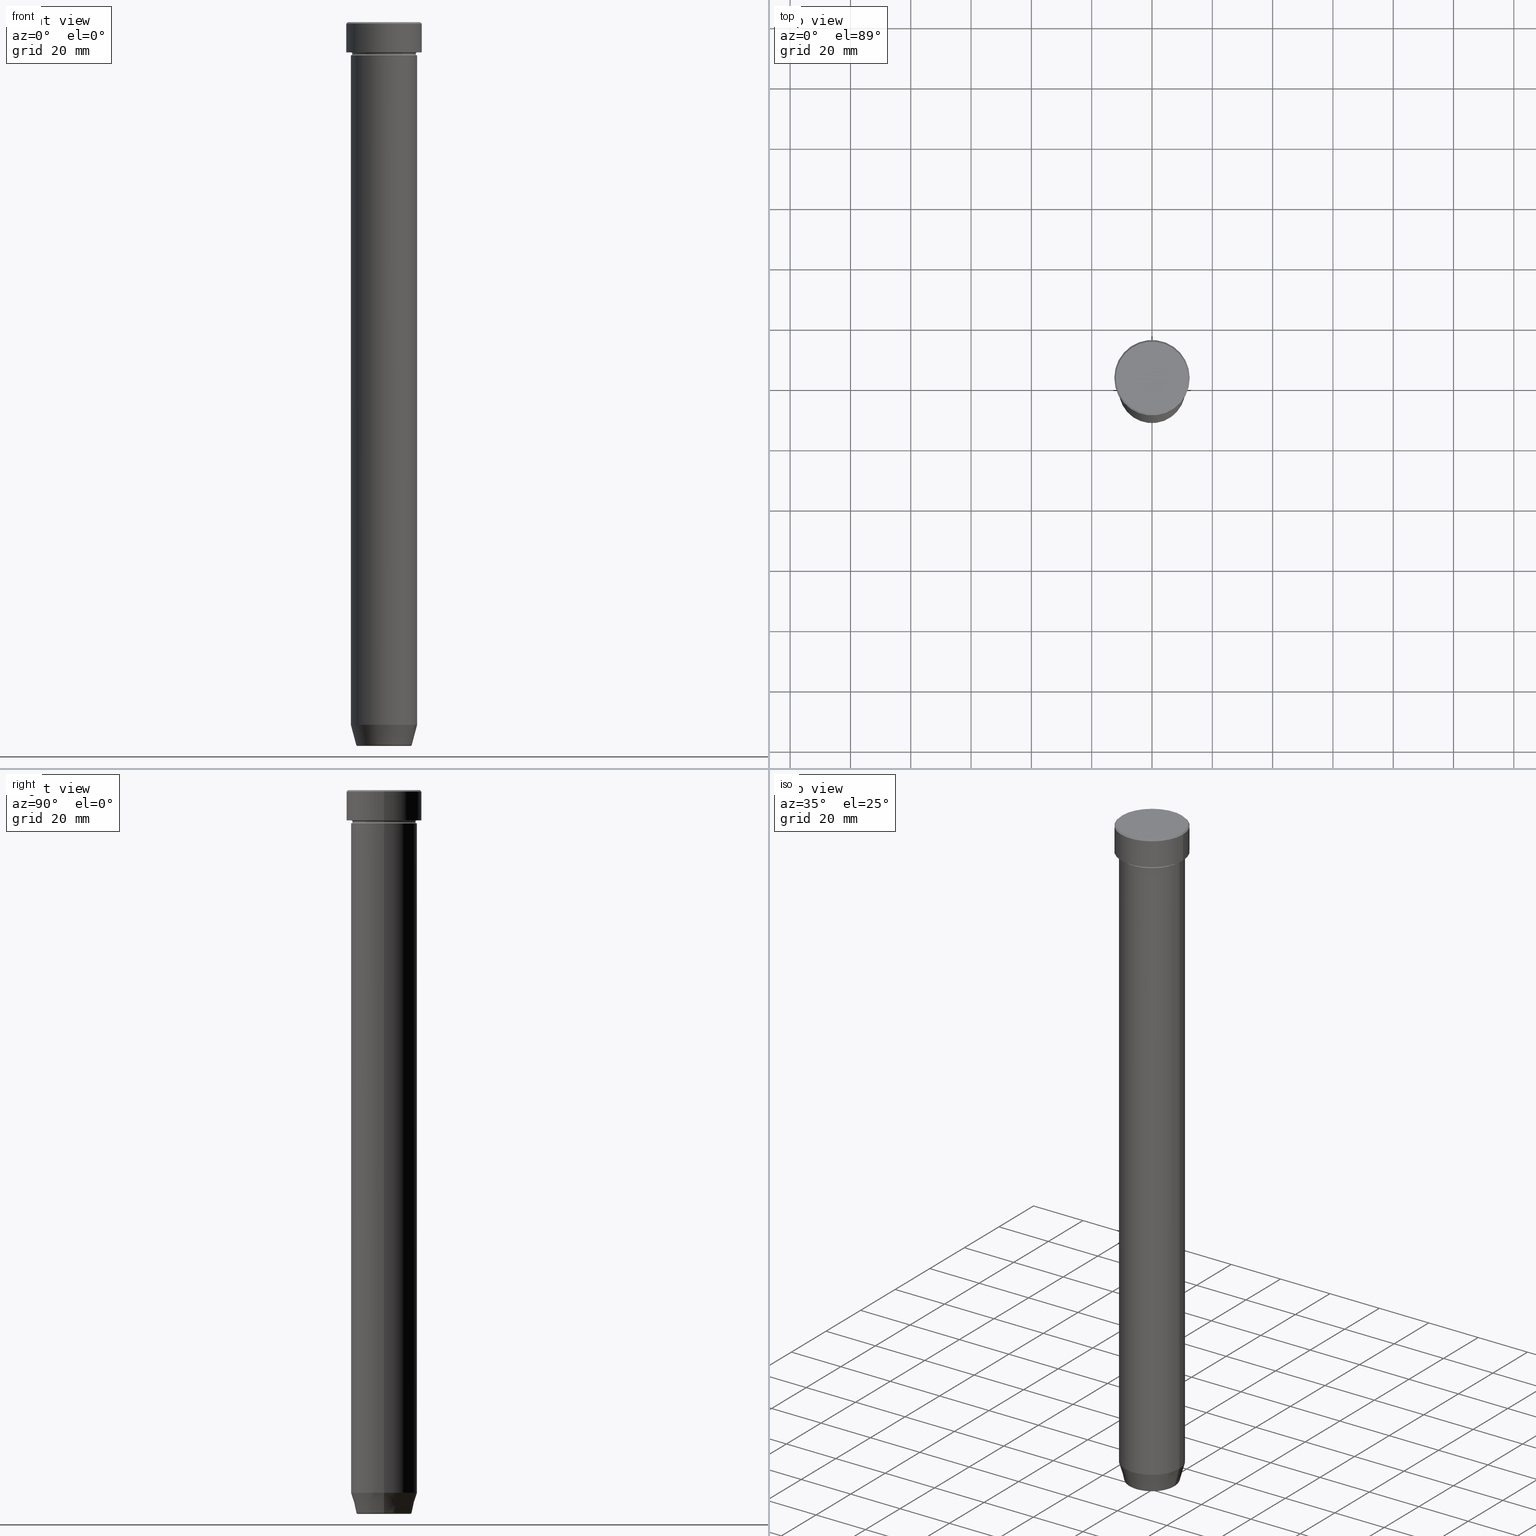
[diagram: canonical four-view strip — front | top / right | iso, engineering-drawing reading convention]
A machine part, canonical four-view strip (front | top / right | iso — engineering-drawing reading convention). The complete STEP part file that produces these views, byte-faithful:
ISO-10303-21;
HEADER;
FILE_DESCRIPTION (( 'STEP AP203' ),
    '1' );
FILE_NAME ('e283.STEP',
    '2024-01-02T19:22:17',
    ( '' ),
    ( '' ),
    'SwSTEP 2.0',
    'SolidWorks 2019',
    '' );
FILE_SCHEMA (( 'CONFIG_CONTROL_DESIGN' ));
ENDSEC;

DATA;
#1 = CIRCLE ( 'NONE', #549, 8.740692158992649397 ) ;
#2 = DIRECTION ( 'NONE',  ( -1.000000000000000000, 0.000000000000000000, -0.000000000000000000 ) ) ;
#3 = AXIS2_PLACEMENT_3D ( 'NONE', #51, #108, #470 ) ;
#4 = EDGE_CURVE ( 'NONE', #455, #572, #414, .T. ) ;
#5 = APPROVAL_ROLE ( '' ) ;
#6 = DIRECTION ( 'NONE',  ( -0.000000000000000000, -0.000000000000000000, 1.000000000000000000 ) ) ;
#7 = CARTESIAN_POINT ( 'NONE',  ( 0.000000000000000000, 0.000000000000000000, -240.0000000000000000 ) ) ;
#8 = EDGE_CURVE ( 'NONE', #37, #31, #336, .T. ) ;
#9 = ORIENTED_EDGE ( 'NONE', *, *, #597, .T. ) ;
#10 = PERSON_AND_ORGANIZATION_ROLE ( 'creator' ) ;
#11 = CARTESIAN_POINT ( 'NONE',  ( -11.00000000000000000, 1.347111479062088405E-15, 0.000000000000000000 ) ) ;
#12 = CYLINDRICAL_SURFACE ( 'NONE', #118, 12.50000000000000000 ) ;
#13 = VERTEX_POINT ( 'NONE', #556 ) ;
#14 = ORIENTED_EDGE ( 'NONE', *, *, #134, .T. ) ;
#15 = DATE_AND_TIME ( #144, #189 ) ;
#16 = CARTESIAN_POINT ( 'NONE',  ( 0.000000000000000000, 0.000000000000000000, -10.00000000000000000 ) ) ;
#17 = CC_DESIGN_PERSON_AND_ORGANIZATION_ASSIGNMENT ( #553, #10, ( #266 ) ) ;
#18 = DIRECTION ( 'NONE',  ( 1.000000000000000000, 0.000000000000000000, 0.000000000000000000 ) ) ;
#19 = TOROIDAL_SURFACE ( 'NONE', #591, 11.00000000000000000, 0.5000000000000000000 ) ;
#20 = CARTESIAN_POINT ( 'NONE',  ( 0.000000000000000000, 0.000000000000000000, -239.6294095225512422 ) ) ;
#21 = APPROVAL_STATUS ( 'not_yet_approved' ) ;
#22 = DIRECTION ( 'NONE',  ( 1.000000000000000000, 0.000000000000000000, 0.000000000000000000 ) ) ;
#23 = EDGE_LOOP ( 'NONE', ( #304, #238, #165, #451 ) ) ;
#24 = DIRECTION ( 'NONE',  ( 1.000000000000000000, 0.000000000000000000, 0.000000000000000000 ) ) ;
#25 = LINE ( 'NONE', #155, #29 ) ;
#26 = APPLICATION_CONTEXT ( 'configuration controlled 3d designs of mechanical parts and assemblies' ) ;
#27 = CARTESIAN_POINT ( 'NONE',  ( 0.000000000000000000, 0.000000000000000000, -11.00000000000000000 ) ) ;
#28 = FACE_OUTER_BOUND ( 'NONE', #347, .T. ) ;
#29 = VECTOR ( 'NONE', #518, 1000.000000000000000 ) ;
#30 = ADVANCED_FACE ( 'NONE', ( #408 ), #576, .T. ) ;
#31 = VERTEX_POINT ( 'NONE', #188 ) ;
#32 = PLANE ( 'NONE',  #442 ) ;
#33 = CARTESIAN_POINT ( 'NONE',  ( 0.000000000000000000, 0.000000000000000000, -0.4999999999999988343 ) ) ;
#34 = CARTESIAN_POINT ( 'NONE',  ( 11.00000000000000000, 1.347111479062088405E-15, -10.50000000000000000 ) ) ;
#35 = ADVANCED_FACE ( 'NONE', ( #555 ), #54, .T. ) ;
#36 = DIRECTION ( 'NONE',  ( 1.000000000000000000, 0.000000000000000000, 0.000000000000000000 ) ) ;
#37 = VERTEX_POINT ( 'NONE', #325 ) ;
#38 = LINE ( 'NONE', #81, #128 ) ;
#39 = AXIS2_PLACEMENT_3D ( 'NONE', #7, #326, #596 ) ;
#40 = APPROVAL_PERSON_ORGANIZATION ( #228, #127, #375 ) ;
#41 = ADVANCED_FACE ( 'NONE', ( #507 ), #199, .T. ) ;
#42 = DIRECTION ( 'NONE',  ( -0.000000000000000000, -0.000000000000000000, 1.000000000000000000 ) ) ;
#43 = PRODUCT_DEFINITION_SHAPE ( 'NONE', 'NONE',  #266 ) ;
#44 = DIRECTION ( 'NONE',  ( 0.000000000000000000, 0.000000000000000000, -1.000000000000000000 ) ) ;
#45 = ORIENTED_EDGE ( 'NONE', *, *, #391, .T. ) ;
#46 = AXIS2_PLACEMENT_3D ( 'NONE', #296, #444, #583 ) ;
#47 = VECTOR ( 'NONE', #394, 1000.000000000000000 ) ;
#48 = ORIENTED_EDGE ( 'NONE', *, *, #88, .T. ) ;
#49 = DIRECTION ( 'NONE',  ( -1.000000000000000000, 0.000000000000000000, 0.000000000000000000 ) ) ;
#50 = APPROVAL_DATE_TIME ( #468, #314 ) ;
#51 = CARTESIAN_POINT ( 'NONE',  ( -11.00000000000000000, 0.000000000000000000, -10.50000000000000000 ) ) ;
#52 = CALENDAR_DATE ( 2024, 2, 1 ) ;
#53 = CARTESIAN_POINT ( 'NONE',  ( -8.740692158992649397, 1.070426067484271730E-15, -239.5000000000000000 ) ) ;
#54 = CONICAL_SURFACE ( 'NONE', #585, 9.124355652982126585, 0.2617993877991509621 ) ;
#55 = DIRECTION ( 'NONE',  ( 1.000000000000000000, 0.000000000000000000, 0.000000000000000000 ) ) ;
#56 = TOROIDAL_SURFACE ( 'NONE', #396, 11.00000000000000000, 0.5000000000000000000 ) ;
#57 = AXIS2_PLACEMENT_3D ( 'NONE', #579, #166, #447 ) ;
#58 = ORIENTED_EDGE ( 'NONE', *, *, #267, .T. ) ;
#59 = CALENDAR_DATE ( 2024, 2, 1 ) ;
#60 = CYLINDRICAL_SURFACE ( 'NONE', #415, 11.00000000000000000 ) ;
#61 = DIRECTION ( 'NONE',  ( -0.000000000000000000, -0.000000000000000000, 1.000000000000000000 ) ) ;
#62 = SHAPE_DEFINITION_REPRESENTATION ( #43, #310 ) ;
#63 = VERTEX_POINT ( 'NONE', #102 ) ;
#64 = ORIENTED_EDGE ( 'NONE', *, *, #214, .T. ) ;
#65 = APPROVAL_ROLE ( '' ) ;
#66 = CARTESIAN_POINT ( 'NONE',  ( 12.00000000000000355, 1.500192328955507734E-15, 0.000000000000000000 ) ) ;
#67 = EDGE_LOOP ( 'NONE', ( #513, #342, #440, #515 ) ) ;
#68 = VECTOR ( 'NONE', #6, 1000.000000000000000 ) ;
#69 = CIRCLE ( 'NONE', #337, 0.5000000000000004441 ) ;
#70 = ORGANIZATION ( 'NEUR�EN�', 'NEUR�EN�', '' ) ;
#71 = DIRECTION ( 'NONE',  ( -1.000000000000000000, 0.000000000000000000, 0.000000000000000000 ) ) ;
#72 = EDGE_CURVE ( 'NONE', #572, #541, #505, .T. ) ;
#73 = CYLINDRICAL_SURFACE ( 'NONE', #103, 11.00000000000000000 ) ;
#74 = CARTESIAN_POINT ( 'NONE',  ( 11.00000000000000000, 0.000000000000000000, -11.00000000000000000 ) ) ;
#75 = CARTESIAN_POINT ( 'NONE',  ( 11.00000000000000000, 0.000000000000000000, -27.00000000000000000 ) ) ;
#76 = DIRECTION ( 'NONE',  ( 1.000000000000000000, 0.000000000000000000, 0.000000000000000000 ) ) ;
#77 = EDGE_CURVE ( 'NONE', #380, #328, #377, .T. ) ;
#78 = CARTESIAN_POINT ( 'NONE',  ( 0.000000000000000000, 0.000000000000000000, -27.00000000000000000 ) ) ;
#79 = ORIENTED_EDGE ( 'NONE', *, *, #361, .T. ) ;
#80 = VECTOR ( 'NONE', #234, 1000.000000000000000 ) ;
#81 = CARTESIAN_POINT ( 'NONE',  ( -11.00000000000000000, 1.347111479062088405E-15, 0.000000000000000000 ) ) ;
#82 = LINE ( 'NONE', #439, #47 ) ;
#83 = CC_DESIGN_PERSON_AND_ORGANIZATION_ASSIGNMENT ( #192, #331, ( #359 ) ) ;
#84 = CARTESIAN_POINT ( 'NONE',  ( 0.000000000000000000, 0.000000000000000000, -240.0000000000000000 ) ) ;
#85 = CIRCLE ( 'NONE', #301, 11.00000000000000000 ) ;
#86 = CIRCLE ( 'NONE', #3, 0.5000000000000004441 ) ;
#87 = FACE_OUTER_BOUND ( 'NONE', #196, .T. ) ;
#88 = EDGE_CURVE ( 'NONE', #355, #374, #1, .T. ) ;
#89 = MANIFOLD_SOLID_BREP ( 'Zaoblit4', #599 ) ;
#90 = CARTESIAN_POINT ( 'NONE',  ( -11.00000000000000000, 0.000000000000000000, -10.00000000000000000 ) ) ;
#91 = EDGE_CURVE ( 'NONE', #302, #371, #477, .T. ) ;
#92 = CIRCLE ( 'NONE', #172, 0.5000000000000004441 ) ;
#93 = CC_DESIGN_APPROVAL ( #294, ( #359 ) ) ;
#94 = ORIENTED_EDGE ( 'NONE', *, *, #214, .F. ) ;
#95 = MECHANICAL_CONTEXT ( 'NONE', #143, 'mechanical' ) ;
#96 = ORIENTED_EDGE ( 'NONE', *, *, #554, .F. ) ;
#97 = COORDINATED_UNIVERSAL_TIME_OFFSET ( 1, 0, .AHEAD. ) ;
#98 = PLANE ( 'NONE',  #381 ) ;
#99 = CARTESIAN_POINT ( 'NONE',  ( 0.000000000000000000, 0.000000000000000000, -0.4999999999999988343 ) ) ;
#100 = COORDINATED_UNIVERSAL_TIME_OFFSET ( 1, 0, .AHEAD. ) ;
#101 = CARTESIAN_POINT ( 'NONE',  ( 0.000000000000000000, 0.000000000000000000, -10.49999999999999822 ) ) ;
#102 = CARTESIAN_POINT ( 'NONE',  ( -11.00000000000000000, 1.347111479062088405E-15, -232.9999999999999716 ) ) ;
#103 = AXIS2_PLACEMENT_3D ( 'NONE', #249, #575, #433 ) ;
#104 = DIRECTION ( 'NONE',  ( -0.2588190451025222383, 3.169619151431782814E-17, 0.9659258262890678681 ) ) ;
#105 = AXIS2_PLACEMENT_3D ( 'NONE', #27, #208, #346 ) ;
#106 = ORIENTED_EDGE ( 'NONE', *, *, #77, .T. ) ;
#107 = CALENDAR_DATE ( 2024, 2, 1 ) ;
#108 = DIRECTION ( 'NONE',  ( -0.000000000000000000, -1.000000000000000000, -0.000000000000000000 ) ) ;
#109 = VERTEX_POINT ( 'NONE', #74 ) ;
#110 = CARTESIAN_POINT ( 'NONE',  ( 0.000000000000000000, 12.50000000000000000, -10.00000000000000000 ) ) ;
#111 = DIRECTION ( 'NONE',  ( 1.000000000000000000, 0.000000000000000000, 0.000000000000000000 ) ) ;
#112 = EDGE_CURVE ( 'NONE', #248, #13, #463, .T. ) ;
#113 = ORIENTED_EDGE ( 'NONE', *, *, #548, .F. ) ;
#114 = CARTESIAN_POINT ( 'NONE',  ( -11.00000000000000000, 1.347111479062088405E-15, -11.00000000000000000 ) ) ;
#115 = DIRECTION ( 'NONE',  ( 0.000000000000000000, 0.000000000000000000, -1.000000000000000000 ) ) ;
#116 = EDGE_CURVE ( 'NONE', #31, #37, #522, .T. ) ;
#117 =( NAMED_UNIT ( * ) PLANE_ANGLE_UNIT ( ) SI_UNIT ( $, .RADIAN. ) );
#118 = AXIS2_PLACEMENT_3D ( 'NONE', #558, #146, #503 ) ;
#119 = LOCAL_TIME ( 20, 22, 17.00000000000000000, #504 ) ;
#120 = FACE_OUTER_BOUND ( 'NONE', #403, .T. ) ;
#121 = DIRECTION ( 'NONE',  ( -0.000000000000000000, -0.000000000000000000, 1.000000000000000000 ) ) ;
#122 = EDGE_LOOP ( 'NONE', ( #148, #156, #113, #419 ) ) ;
#123 = CARTESIAN_POINT ( 'NONE',  ( -11.00000000000000000, 1.347111479062088405E-15, -27.00000000000000000 ) ) ;
#124 = ORIENTED_EDGE ( 'NONE', *, *, #548, .T. ) ;
#125 = DIRECTION ( 'NONE',  ( 0.000000000000000000, 0.000000000000000000, -1.000000000000000000 ) ) ;
#126 = CIRCLE ( 'NONE', #131, 0.5000000000000004441 ) ;
#127 = APPROVAL ( #21, 'NEUR�EN�' ) ;
#128 = VECTOR ( 'NONE', #582, 1000.000000000000000 ) ;
#129 = DIRECTION ( 'NONE',  ( -0.000000000000000000, -0.000000000000000000, 1.000000000000000000 ) ) ;
#130 = EDGE_CURVE ( 'NONE', #455, #109, #25, .T. ) ;
#131 = AXIS2_PLACEMENT_3D ( 'NONE', #34, #300, #356 ) ;
#132 = CARTESIAN_POINT ( 'NONE',  ( 0.000000000000000000, 0.000000000000000000, 0.000000000000000000 ) ) ;
#133 = CC_DESIGN_PERSON_AND_ORGANIZATION_ASSIGNMENT ( #369, #202, ( #251 ) ) ;
#134 = EDGE_CURVE ( 'NONE', #572, #455, #406, .T. ) ;
#135 = EDGE_LOOP ( 'NONE', ( #263, #154, #230, #282 ) ) ;
#136 = EDGE_LOOP ( 'NONE', ( #448, #14, #171, #480 ) ) ;
#137 = AXIS2_PLACEMENT_3D ( 'NONE', #427, #121, #18 ) ;
#138 = DIRECTION ( 'NONE',  ( 1.000000000000000000, 0.000000000000000000, 0.000000000000000000 ) ) ;
#139 = CARTESIAN_POINT ( 'NONE',  ( -9.223655072137175281, 1.238341722557646018E-15, -239.6294095225512422 ) ) ;
#140 = ADVANCED_FACE ( 'NONE', ( #532 ), #577, .T. ) ;
#141 = ORIENTED_EDGE ( 'NONE', *, *, #361, .F. ) ;
#142 = PERSON_AND_ORGANIZATION_ROLE ( 'design_supplier' ) ;
#143 = APPLICATION_CONTEXT ( 'configuration controlled 3d designs of mechanical parts and assemblies' ) ;
#144 = CALENDAR_DATE ( 2024, 2, 1 ) ;
#145 = DIRECTION ( 'NONE',  ( 0.000000000000000000, 0.000000000000000000, -1.000000000000000000 ) ) ;
#146 = DIRECTION ( 'NONE',  ( -0.000000000000000000, -0.000000000000000000, 1.000000000000000000 ) ) ;
#147 = EDGE_CURVE ( 'NONE', #328, #446, #85, .T. ) ;
#148 = ORIENTED_EDGE ( 'NONE', *, *, #4, .T. ) ;
#149 = ORIENTED_EDGE ( 'NONE', *, *, #8, .T. ) ;
#150 = PERSON_AND_ORGANIZATION ( #452, #70 ) ;
#151 = CARTESIAN_POINT ( 'NONE',  ( 0.000000000000000000, 0.000000000000000000, 0.000000000000000000 ) ) ;
#152 = TOROIDAL_SURFACE ( 'NONE', #491, 11.00000000000000000, 0.5000000000000000000 ) ;
#153 = AXIS2_PLACEMENT_3D ( 'NONE', #420, #295, #305 ) ;
#154 = ORIENTED_EDGE ( 'NONE', *, *, #303, .T. ) ;
#155 = CARTESIAN_POINT ( 'NONE',  ( 11.00000000000000000, 0.000000000000000000, 0.000000000000000000 ) ) ;
#156 = ORIENTED_EDGE ( 'NONE', *, *, #72, .T. ) ;
#157 = DIRECTION ( 'NONE',  ( -0.000000000000000000, -0.000000000000000000, 1.000000000000000000 ) ) ;
#158 = CARTESIAN_POINT ( 'NONE',  ( 0.000000000000000000, 0.000000000000000000, -10.00000000000000000 ) ) ;
#159 = DIRECTION ( 'NONE',  ( 1.000000000000000000, 0.000000000000000000, 0.000000000000000000 ) ) ;
#160 = FACE_BOUND ( 'NONE', #508, .T. ) ;
#161 =( LENGTH_UNIT ( ) NAMED_UNIT ( * ) SI_UNIT ( .MILLI., .METRE. ) );
#162 = DIRECTION ( 'NONE',  ( -0.000000000000000000, -0.000000000000000000, 1.000000000000000000 ) ) ;
#163 = CIRCLE ( 'NONE', #586, 9.223655072137175281 ) ;
#164 =( GEOMETRIC_REPRESENTATION_CONTEXT ( 3 ) GLOBAL_UNCERTAINTY_ASSIGNED_CONTEXT ( ( #519 ) ) GLOBAL_UNIT_ASSIGNED_CONTEXT ( ( #161, #117, #257 ) ) REPRESENTATION_CONTEXT ( 'NONE', 'WORKASPACE' ) );
#165 = ORIENTED_EDGE ( 'NONE', *, *, #311, .F. ) ;
#166 = DIRECTION ( 'NONE',  ( -0.000000000000000000, -0.000000000000000000, 1.000000000000000000 ) ) ;
#167 = CARTESIAN_POINT ( 'NONE',  ( 0.000000000000000000, 0.000000000000000000, -27.00000000000000000 ) ) ;
#168 = ORIENTED_EDGE ( 'NONE', *, *, #193, .F. ) ;
#169 = LINE ( 'NONE', #351, #550 ) ;
#170 = CARTESIAN_POINT ( 'NONE',  ( 0.000000000000000000, 0.000000000000000000, -10.49999999999999822 ) ) ;
#171 = ORIENTED_EDGE ( 'NONE', *, *, #130, .T. ) ;
#172 = AXIS2_PLACEMENT_3D ( 'NONE', #53, #568, #461 ) ;
#173 = LOCAL_TIME ( 20, 22, 17.00000000000000000, #100 ) ;
#174 = ADVANCED_FACE ( 'NONE', ( #527 ), #495, .T. ) ;
#175 = ADVANCED_FACE ( 'NONE', ( #297 ), #344, .F. ) ;
#176 = CARTESIAN_POINT ( 'NONE',  ( 0.000000000000000000, 0.000000000000000000, -10.50000000000000000 ) ) ;
#177 = EDGE_CURVE ( 'NONE', #302, #31, #453, .T. ) ;
#178 = PLANE ( 'NONE',  #523 ) ;
#179 = CIRCLE ( 'NONE', #539, 11.00000000000000000 ) ;
#180 = AXIS2_PLACEMENT_3D ( 'NONE', #280, #186, #514 ) ;
#181 = LINE ( 'NONE', #333, #449 ) ;
#182 = EDGE_LOOP ( 'NONE', ( #584, #424, #45, #124 ) ) ;
#183 = CARTESIAN_POINT ( 'NONE',  ( 0.000000000000000000, 0.000000000000000000, 0.000000000000000000 ) ) ;
#184 = DIRECTION ( 'NONE',  ( -0.000000000000000000, -0.000000000000000000, 1.000000000000000000 ) ) ;
#185 = AXIS2_PLACEMENT_3D ( 'NONE', #33, #569, #209 ) ;
#186 = DIRECTION ( 'NONE',  ( 0.000000000000000000, 0.000000000000000000, 1.000000000000000000 ) ) ;
#187 = AXIS2_PLACEMENT_3D ( 'NONE', #101, #474, #198 ) ;
#188 = CARTESIAN_POINT ( 'NONE',  ( -12.50000000000000000, 1.530808498934191521E-15, -0.4999999999999988343 ) ) ;
#189 = LOCAL_TIME ( 20, 22, 17.00000000000000000, #275 ) ;
#190 = ORIENTED_EDGE ( 'NONE', *, *, #134, .F. ) ;
#191 = EDGE_LOOP ( 'NONE', ( #360, #547, #221, #313 ) ) ;
#192 = PERSON_AND_ORGANIZATION ( #452, #70 ) ;
#193 = EDGE_CURVE ( 'NONE', #374, #355, #316, .T. ) ;
#194 = APPROVAL_STATUS ( 'not_yet_approved' ) ;
#195 = DIRECTION ( 'NONE',  ( -0.000000000000000000, -0.000000000000000000, 1.000000000000000000 ) ) ;
#196 = EDGE_LOOP ( 'NONE', ( #141, #521, #466, #565 ) ) ;
#197 = ORIENTED_EDGE ( 'NONE', *, *, #498, .F. ) ;
#198 = DIRECTION ( 'NONE',  ( 1.000000000000000000, 0.000000000000000000, 0.000000000000000000 ) ) ;
#199 = TOROIDAL_SURFACE ( 'NONE', #395, 8.740692158992649397, 0.5000000000000000000 ) ;
#200 = VECTOR ( 'NONE', #338, 999.9999999999998863 ) ;
#201 = ORIENTED_EDGE ( 'NONE', *, *, #116, .F. ) ;
#202 = PERSON_AND_ORGANIZATION_ROLE ( 'design_owner' ) ;
#203 = CARTESIAN_POINT ( 'NONE',  ( 0.000000000000000000, 0.000000000000000000, -239.6294095225512422 ) ) ;
#204 = DIRECTION ( 'NONE',  ( -0.000000000000000000, -0.000000000000000000, 1.000000000000000000 ) ) ;
#205 = DIRECTION ( 'NONE',  ( 1.000000000000000000, 0.000000000000000000, 0.000000000000000000 ) ) ;
#206 = ADVANCED_FACE ( 'NONE', ( #592 ), #12, .T. ) ;
#207 = ORIENTED_EDGE ( 'NONE', *, *, #289, .T. ) ;
#208 = DIRECTION ( 'NONE',  ( -0.000000000000000000, -0.000000000000000000, 1.000000000000000000 ) ) ;
#209 = DIRECTION ( 'NONE',  ( 1.000000000000000000, 0.000000000000000000, 0.000000000000000000 ) ) ;
#210 = DIRECTION ( 'NONE',  ( 0.000000000000000000, -1.000000000000000000, 0.000000000000000000 ) ) ;
#211 = DIRECTION ( 'NONE',  ( -0.000000000000000000, -0.000000000000000000, 1.000000000000000000 ) ) ;
#212 = EDGE_LOOP ( 'NONE', ( #349, #9 ) ) ;
#213 = ORIENTED_EDGE ( 'NONE', *, *, #498, .T. ) ;
#214 = EDGE_CURVE ( 'NONE', #240, #63, #181, .T. ) ;
#215 = CARTESIAN_POINT ( 'NONE',  ( 12.50000000000000000, 0.000000000000000000, -10.00000000000000000 ) ) ;
#216 = CARTESIAN_POINT ( 'NONE',  ( -12.50000000000000000, 1.530808498934191521E-15, -10.00000000000000000 ) ) ;
#217 = FACE_OUTER_BOUND ( 'NONE', #135, .T. ) ;
#218 = ADVANCED_FACE ( 'NONE', ( #272 ), #510, .T. ) ;
#219 = VECTOR ( 'NONE', #366, 999.9999999999998863 ) ;
#220 = DIRECTION ( 'NONE',  ( -1.000000000000000000, 0.000000000000000000, 0.000000000000000000 ) ) ;
#221 = ORIENTED_EDGE ( 'NONE', *, *, #147, .F. ) ;
#222 = CARTESIAN_POINT ( 'NONE',  ( 0.000000000000000000, 0.000000000000000000, -27.00000000000000000 ) ) ;
#223 = ORIENTED_EDGE ( 'NONE', *, *, #318, .F. ) ;
#224 = CIRCLE ( 'NONE', #563, 11.00000000000000000 ) ;
#225 = DIRECTION ( 'NONE',  ( 0.000000000000000000, 0.000000000000000000, -1.000000000000000000 ) ) ;
#226 = DIRECTION ( 'NONE',  ( 0.000000000000000000, 0.000000000000000000, -1.000000000000000000 ) ) ;
#227 = DIRECTION ( 'NONE',  ( 1.000000000000000000, 0.000000000000000000, 0.000000000000000000 ) ) ;
#228 = PERSON_AND_ORGANIZATION ( #452, #70 ) ;
#229 = CARTESIAN_POINT ( 'NONE',  ( 0.000000000000000000, 0.000000000000000000, 0.000000000000000000 ) ) ;
#230 = ORIENTED_EDGE ( 'NONE', *, *, #534, .T. ) ;
#231 = CIRCLE ( 'NONE', #307, 12.50000000000000000 ) ;
#232 = DATE_AND_TIME ( #52, #511 ) ;
#233 = CIRCLE ( 'NONE', #105, 11.00000000000000000 ) ;
#234 = DIRECTION ( 'NONE',  ( -0.000000000000000000, -0.000000000000000000, 1.000000000000000000 ) ) ;
#235 = EDGE_LOOP ( 'NONE', ( #273, #48 ) ) ;
#236 = APPLICATION_PROTOCOL_DEFINITION ( 'international standard', 'config_control_design', 1994, #143 ) ;
#237 = CARTESIAN_POINT ( 'NONE',  ( 11.00000000000000000, 0.000000000000000000, 0.000000000000000000 ) ) ;
#238 = ORIENTED_EDGE ( 'NONE', *, *, #399, .T. ) ;
#239 = ADVANCED_FACE ( 'NONE', ( #409 ), #152, .F. ) ;
#240 = VERTEX_POINT ( 'NONE', #139 ) ;
#241 = DIRECTION ( 'NONE',  ( -0.000000000000000000, -0.000000000000000000, 1.000000000000000000 ) ) ;
#242 = ORIENTED_EDGE ( 'NONE', *, *, #147, .T. ) ;
#243 = CARTESIAN_POINT ( 'NONE',  ( 0.000000000000000000, 11.00000000000000000, -27.00000000000000000 ) ) ;
#244 = FACE_OUTER_BOUND ( 'NONE', #471, .T. ) ;
#245 = CIRCLE ( 'NONE', #46, 0.5000000000000004441 ) ;
#246 = CC_DESIGN_PERSON_AND_ORGANIZATION_ASSIGNMENT ( #567, #509, ( #478 ) ) ;
#247 = CONICAL_SURFACE ( 'NONE', #309, 9.124355652982126585, 0.2617993877991509621 ) ;
#248 = VERTEX_POINT ( 'NONE', #462 ) ;
#249 = CARTESIAN_POINT ( 'NONE',  ( 0.000000000000000000, 0.000000000000000000, 0.000000000000000000 ) ) ;
#250 = ORIENTED_EDGE ( 'NONE', *, *, #531, .T. ) ;
#251 = PRODUCT ( 'e283', 'e283', '', ( #95 ) ) ;
#252 = ORIENTED_EDGE ( 'NONE', *, *, #531, .F. ) ;
#253 = DIRECTION ( 'NONE',  ( -0.000000000000000000, -0.000000000000000000, 1.000000000000000000 ) ) ;
#254 = CARTESIAN_POINT ( 'NONE',  ( 9.124355652982126585, 0.000000000000000000, -240.0000000000000000 ) ) ;
#255 = AXIS2_PLACEMENT_3D ( 'NONE', #222, #546, #278 ) ;
#256 = CIRCLE ( 'NONE', #497, 11.00000000000000000 ) ;
#257 =( NAMED_UNIT ( * ) SI_UNIT ( $, .STERADIAN. ) SOLID_ANGLE_UNIT ( ) );
#258 = CARTESIAN_POINT ( 'NONE',  ( -12.00000000000000355, 0.000000000000000000, 0.000000000000000000 ) ) ;
#259 = DIRECTION ( 'NONE',  ( 1.000000000000000000, 0.000000000000000000, 0.000000000000000000 ) ) ;
#260 = DIRECTION ( 'NONE',  ( -0.000000000000000000, -0.000000000000000000, 1.000000000000000000 ) ) ;
#261 = DIRECTION ( 'NONE',  ( 1.000000000000000000, 0.000000000000000000, 0.000000000000000000 ) ) ;
#262 = EDGE_CURVE ( 'NONE', #13, #248, #270, .T. ) ;
#263 = ORIENTED_EDGE ( 'NONE', *, *, #112, .F. ) ;
#264 = FACE_OUTER_BOUND ( 'NONE', #485, .T. ) ;
#265 = DIRECTION ( 'NONE',  ( -0.000000000000000000, -0.000000000000000000, 1.000000000000000000 ) ) ;
#266 = PRODUCT_DEFINITION ( 'NEZN�M�', '', #359, #353 ) ;
#267 = EDGE_CURVE ( 'NONE', #422, #428, #231, .T. ) ;
#268 = CARTESIAN_POINT ( 'NONE',  ( -11.00000000000000000, 1.347111479062088405E-15, -27.00000000000000000 ) ) ;
#269 = ORIENTED_EDGE ( 'NONE', *, *, #267, .F. ) ;
#270 = CIRCLE ( 'NONE', #187, 10.49999999999999822 ) ;
#271 = LOCAL_TIME ( 20, 22, 17.00000000000000000, #598 ) ;
#272 = FACE_OUTER_BOUND ( 'NONE', #335, .T. ) ;
#273 = ORIENTED_EDGE ( 'NONE', *, *, #193, .T. ) ;
#274 = ADVANCED_FACE ( 'NONE', ( #286 ), #60, .T. ) ;
#275 = COORDINATED_UNIVERSAL_TIME_OFFSET ( 1, 0, .AHEAD. ) ;
#276 = CARTESIAN_POINT ( 'NONE',  ( 0.000000000000000000, 0.000000000000000000, -10.50000000000000000 ) ) ;
#277 = ADVANCED_FACE ( 'NONE', ( #244 ), #376, .T. ) ;
#278 = DIRECTION ( 'NONE',  ( 1.000000000000000000, 0.000000000000000000, 0.000000000000000000 ) ) ;
#279 = ORIENTED_EDGE ( 'NONE', *, *, #404, .T. ) ;
#280 = CARTESIAN_POINT ( 'NONE',  ( 0.000000000000000000, 0.000000000000000000, 0.000000000000000000 ) ) ;
#281 = DIRECTION ( 'NONE',  ( 1.000000000000000000, 0.000000000000000000, 0.000000000000000000 ) ) ;
#282 = ORIENTED_EDGE ( 'NONE', *, *, #391, .F. ) ;
#283 = CARTESIAN_POINT ( 'NONE',  ( 0.000000000000000000, 0.000000000000000000, -239.5000000000000000 ) ) ;
#284 = AXIS2_PLACEMENT_3D ( 'NONE', #243, #125, #529 ) ;
#285 = DATE_AND_TIME ( #59, #271 ) ;
#286 = FACE_OUTER_BOUND ( 'NONE', #122, .T. ) ;
#287 = AXIS2_PLACEMENT_3D ( 'NONE', #496, #210, #44 ) ;
#288 = ORIENTED_EDGE ( 'NONE', *, *, #431, .T. ) ;
#289 = EDGE_CURVE ( 'NONE', #240, #412, #163, .T. ) ;
#290 = ADVANCED_FACE ( 'NONE', ( #481 ), #73, .T. ) ;
#291 = CALENDAR_DATE ( 2024, 2, 1 ) ;
#292 = CARTESIAN_POINT ( 'NONE',  ( 0.000000000000000000, 2.326828918379971286E-14, -240.0000000000000000 ) ) ;
#293 = EDGE_LOOP ( 'NONE', ( #385, #79, #559, #417 ) ) ;
#294 = APPROVAL ( #194, 'NEUR�EN�' ) ;
#295 = DIRECTION ( 'NONE',  ( -0.000000000000000000, -0.000000000000000000, 1.000000000000000000 ) ) ;
#296 = CARTESIAN_POINT ( 'NONE',  ( -11.00000000000000000, 1.347111479062088405E-15, -10.49999999999999822 ) ) ;
#297 = FACE_OUTER_BOUND ( 'NONE', #484, .T. ) ;
#298 = CARTESIAN_POINT ( 'NONE',  ( 0.000000000000000000, 0.000000000000000000, -11.00000000000000000 ) ) ;
#299 = DIRECTION ( 'NONE',  ( -0.000000000000000000, -0.000000000000000000, 1.000000000000000000 ) ) ;
#300 = DIRECTION ( 'NONE',  ( -1.224646799147353207E-16, 1.000000000000000000, 0.000000000000000000 ) ) ;
#301 = AXIS2_PLACEMENT_3D ( 'NONE', #487, #162, #308 ) ;
#302 = VERTEX_POINT ( 'NONE', #258 ) ;
#303 = EDGE_CURVE ( 'NONE', #248, #541, #245, .T. ) ;
#304 = ORIENTED_EDGE ( 'NONE', *, *, #88, .F. ) ;
#305 = DIRECTION ( 'NONE',  ( 1.000000000000000000, 0.000000000000000000, 0.000000000000000000 ) ) ;
#306 = DIRECTION ( 'NONE',  ( -0.000000000000000000, -0.000000000000000000, 1.000000000000000000 ) ) ;
#307 = AXIS2_PLACEMENT_3D ( 'NONE', #16, #341, #383 ) ;
#308 = DIRECTION ( 'NONE',  ( 1.000000000000000000, 0.000000000000000000, 0.000000000000000000 ) ) ;
#309 = AXIS2_PLACEMENT_3D ( 'NONE', #84, #211, #533 ) ;
#310 = ADVANCED_BREP_SHAPE_REPRESENTATION ( 'e283', ( #493, #89, #180 ), #164 ) ;
#311 = EDGE_CURVE ( 'NONE', #412, #240, #364, .T. ) ;
#312 = CARTESIAN_POINT ( 'NONE',  ( 9.223655072137175281, 0.000000000000000000, -239.6294095225512422 ) ) ;
#313 = ORIENTED_EDGE ( 'NONE', *, *, #77, .F. ) ;
#314 = APPROVAL ( #512, 'NEUR�EN�' ) ;
#315 = AXIS2_PLACEMENT_3D ( 'NONE', #183, #551, #457 ) ;
#316 = CIRCLE ( 'NONE', #39, 8.740692158992649397 ) ;
#317 = DIRECTION ( 'NONE',  ( 1.000000000000000000, 0.000000000000000000, 0.000000000000000000 ) ) ;
#318 = EDGE_CURVE ( 'NONE', #380, #63, #256, .T. ) ;
#319 = FACE_OUTER_BOUND ( 'NONE', #212, .T. ) ;
#320 = CARTESIAN_POINT ( 'NONE',  ( -12.00000000000000355, 0.000000000000000000, 0.000000000000000000 ) ) ;
#321 = EDGE_CURVE ( 'NONE', #489, #339, #179, .T. ) ;
#322 = VECTOR ( 'NONE', #492, 1000.000000000000000 ) ;
#323 = CIRCLE ( 'NONE', #153, 12.00000000000000355 ) ;
#324 = ADVANCED_FACE ( 'NONE', ( #87 ), #56, .F. ) ;
#325 = CARTESIAN_POINT ( 'NONE',  ( 12.50000000000000000, 0.000000000000000000, -0.4999999999999988343 ) ) ;
#326 = DIRECTION ( 'NONE',  ( 0.000000000000000000, 0.000000000000000000, -1.000000000000000000 ) ) ;
#327 = CARTESIAN_POINT ( 'NONE',  ( 0.000000000000000000, 0.000000000000000000, 0.000000000000000000 ) ) ;
#328 = VERTEX_POINT ( 'NONE', #363 ) ;
#329 = ORIENTED_EDGE ( 'NONE', *, *, #362, .T. ) ;
#330 = ORIENTED_EDGE ( 'NONE', *, *, #554, .T. ) ;
#331 = PERSON_AND_ORGANIZATION_ROLE ( 'creator' ) ;
#332 = CARTESIAN_POINT ( 'NONE',  ( 0.000000000000000000, 0.000000000000000000, -239.5000000000000000 ) ) ;
#333 = CARTESIAN_POINT ( 'NONE',  ( -9.124355652982126585, 1.117411294470662018E-15, -240.0000000000000000 ) ) ;
#334 = FACE_OUTER_BOUND ( 'NONE', #528, .T. ) ;
#335 = EDGE_LOOP ( 'NONE', ( #379, #288, #201, #386 ) ) ;
#336 = CIRCLE ( 'NONE', #405, 12.50000000000000000 ) ;
#337 = AXIS2_PLACEMENT_3D ( 'NONE', #432, #390, #115 ) ;
#338 = DIRECTION ( 'NONE',  ( -0.7071067811865462405, 0.000000000000000000, -0.7071067811865489050 ) ) ;
#339 = VERTEX_POINT ( 'NONE', #494 ) ;
#340 = EDGE_CURVE ( 'NONE', #412, #380, #488, .T. ) ;
#341 = DIRECTION ( 'NONE',  ( -0.000000000000000000, -0.000000000000000000, 1.000000000000000000 ) ) ;
#342 = ORIENTED_EDGE ( 'NONE', *, *, #91, .F. ) ;
#343 = CYLINDRICAL_SURFACE ( 'NONE', #540, 12.50000000000000000 ) ;
#344 = PLANE ( 'NONE',  #454 ) ;
#345 = DIRECTION ( 'NONE',  ( -0.000000000000000000, -0.000000000000000000, 1.000000000000000000 ) ) ;
#346 = DIRECTION ( 'NONE',  ( 1.000000000000000000, 0.000000000000000000, 0.000000000000000000 ) ) ;
#347 = EDGE_LOOP ( 'NONE', ( #94, #207, #476, #460 ) ) ;
#348 = AXIS2_PLACEMENT_3D ( 'NONE', #389, #573, #482 ) ;
#349 = ORIENTED_EDGE ( 'NONE', *, *, #91, .T. ) ;
#350 = DIRECTION ( 'NONE',  ( 1.000000000000000000, 0.000000000000000000, 0.000000000000000000 ) ) ;
#351 = CARTESIAN_POINT ( 'NONE',  ( 12.50000000000000000, 0.000000000000000000, 0.000000000000000000 ) ) ;
#352 = CARTESIAN_POINT ( 'NONE',  ( -8.740692158992649397, 1.099999016768738470E-15, -240.0000000000000000 ) ) ;
#353 = DESIGN_CONTEXT ( 'detailed design', #26, 'design' ) ;
#354 = DIRECTION ( 'NONE',  ( -0.000000000000000000, -0.000000000000000000, 1.000000000000000000 ) ) ;
#355 = VERTEX_POINT ( 'NONE', #352 ) ;
#356 = DIRECTION ( 'NONE',  ( -1.000000000000000000, -1.224646799147353454E-16, 0.000000000000000000 ) ) ;
#357 = AXIS2_PLACEMENT_3D ( 'NONE', #151, #260, #159 ) ;
#358 = CARTESIAN_POINT ( 'NONE',  ( 0.000000000000000000, 0.000000000000000000, -232.9999999999999716 ) ) ;
#359 = PRODUCT_DEFINITION_FORMATION_WITH_SPECIFIED_SOURCE ( 'LIBOVOLN�', '', #251, .NOT_KNOWN. ) ;
#360 = ORIENTED_EDGE ( 'NONE', *, *, #318, .T. ) ;
#361 = EDGE_CURVE ( 'NONE', #13, #339, #126, .T. ) ;
#362 = EDGE_CURVE ( 'NONE', #63, #380, #224, .T. ) ;
#363 = CARTESIAN_POINT ( 'NONE',  ( 11.00000000000000000, 0.000000000000000000, -27.00000000000000000 ) ) ;
#364 = CIRCLE ( 'NONE', #441, 9.223655072137175281 ) ;
#365 = AXIS2_PLACEMENT_3D ( 'NONE', #443, #129, #76 ) ;
#366 = DIRECTION ( 'NONE',  ( 0.7071067811865462405, 8.659560562354918067E-17, -0.7071067811865489050 ) ) ;
#367 = AXIS2_PLACEMENT_3D ( 'NONE', #283, #354, #537 ) ;
#368 = CIRCLE ( 'NONE', #587, 11.00000000000000000 ) ;
#369 = PERSON_AND_ORGANIZATION ( #452, #70 ) ;
#370 = DIRECTION ( 'NONE',  ( -0.000000000000000000, -0.000000000000000000, 1.000000000000000000 ) ) ;
#371 = VERTEX_POINT ( 'NONE', #66 ) ;
#372 = PERSON_AND_ORGANIZATION ( #452, #70 ) ;
#373 = CARTESIAN_POINT ( 'NONE',  ( 0.000000000000000000, 0.000000000000000000, -240.0000000000000000 ) ) ;
#374 = VERTEX_POINT ( 'NONE', #437 ) ;
#375 = APPROVAL_ROLE ( '' ) ;
#376 = PLANE ( 'NONE',  #284 ) ;
#377 = LINE ( 'NONE', #237, #80 ) ;
#378 = ADVANCED_FACE ( 'NONE', ( #570 ), #19, .F. ) ;
#379 = ORIENTED_EDGE ( 'NONE', *, *, #597, .F. ) ;
#380 = VERTEX_POINT ( 'NONE', #526 ) ;
#381 = AXIS2_PLACEMENT_3D ( 'NONE', #110, #473, #561 ) ;
#382 = APPLICATION_PROTOCOL_DEFINITION ( 'international standard', 'config_control_design', 1994, #26 ) ;
#383 = DIRECTION ( 'NONE',  ( 1.000000000000000000, 0.000000000000000000, 0.000000000000000000 ) ) ;
#384 = AXIS2_PLACEMENT_3D ( 'NONE', #436, #253, #261 ) ;
#385 = ORIENTED_EDGE ( 'NONE', *, *, #112, .T. ) ;
#386 = ORIENTED_EDGE ( 'NONE', *, *, #177, .F. ) ;
#387 = ORIENTED_EDGE ( 'NONE', *, *, #524, .T. ) ;
#388 = PERSON_AND_ORGANIZATION ( #452, #70 ) ;
#389 = CARTESIAN_POINT ( 'NONE',  ( 0.000000000000000000, 0.000000000000000000, -10.49999999999999822 ) ) ;
#390 = DIRECTION ( 'NONE',  ( 0.000000000000000000, -1.000000000000000000, 0.000000000000000000 ) ) ;
#391 = EDGE_CURVE ( 'NONE', #13, #109, #69, .T. ) ;
#392 = DIRECTION ( 'NONE',  ( -0.000000000000000000, -0.000000000000000000, 1.000000000000000000 ) ) ;
#393 = ADVANCED_FACE ( 'NONE', ( #160, #120 ), #98, .T. ) ;
#394 = DIRECTION ( 'NONE',  ( -0.000000000000000000, -0.000000000000000000, 1.000000000000000000 ) ) ;
#395 = AXIS2_PLACEMENT_3D ( 'NONE', #332, #61, #55 ) ;
#396 = AXIS2_PLACEMENT_3D ( 'NONE', #176, #536, #588 ) ;
#397 = TOROIDAL_SURFACE ( 'NONE', #384, 11.00000000000000000, 0.5000000000000000000 ) ;
#398 = CARTESIAN_POINT ( 'NONE',  ( 0.000000000000000000, 0.000000000000000000, -232.9999999999999716 ) ) ;
#399 = EDGE_CURVE ( 'NONE', #355, #240, #92, .T. ) ;
#400 = CC_DESIGN_DATE_AND_TIME_ASSIGNMENT ( #285, #426, ( #266 ) ) ;
#401 = CIRCLE ( 'NONE', #564, 11.00000000000000000 ) ;
#402 = CC_DESIGN_APPROVAL ( #127, ( #266 ) ) ;
#403 = EDGE_LOOP ( 'NONE', ( #269, #96 ) ) ;
#404 = EDGE_CURVE ( 'NONE', #339, #489, #401, .T. ) ;
#405 = AXIS2_PLACEMENT_3D ( 'NONE', #99, #225, #227 ) ;
#406 = CIRCLE ( 'NONE', #544, 11.00000000000000000 ) ;
#407 = ADVANCED_FACE ( 'NONE', ( #264 ), #535, .T. ) ;
#408 = FACE_OUTER_BOUND ( 'NONE', #67, .T. ) ;
#409 = FACE_OUTER_BOUND ( 'NONE', #293, .T. ) ;
#410 = CC_DESIGN_PERSON_AND_ORGANIZATION_ASSIGNMENT ( #372, #142, ( #359 ) ) ;
#411 = DIRECTION ( 'NONE',  ( 0.000000000000000000, 0.000000000000000000, -1.000000000000000000 ) ) ;
#412 = VERTEX_POINT ( 'NONE', #312 ) ;
#413 = ADVANCED_FACE ( 'NONE', ( #28 ), #247, .T. ) ;
#414 = CIRCLE ( 'NONE', #255, 11.00000000000000000 ) ;
#415 = AXIS2_PLACEMENT_3D ( 'NONE', #423, #195, #111 ) ;
#416 = APPROVAL_PERSON_ORGANIZATION ( #388, #294, #5 ) ;
#417 = ORIENTED_EDGE ( 'NONE', *, *, #595, .F. ) ;
#418 = APPROVAL_DATE_TIME ( #232, #127 ) ;
#419 = ORIENTED_EDGE ( 'NONE', *, *, #130, .F. ) ;
#420 = CARTESIAN_POINT ( 'NONE',  ( 0.000000000000000000, 0.000000000000000000, 0.000000000000000000 ) ) ;
#421 = DIRECTION ( 'NONE',  ( -1.000000000000000000, 0.000000000000000000, 0.000000000000000000 ) ) ;
#422 = VERTEX_POINT ( 'NONE', #215 ) ;
#423 = CARTESIAN_POINT ( 'NONE',  ( 0.000000000000000000, 0.000000000000000000, 0.000000000000000000 ) ) ;
#424 = ORIENTED_EDGE ( 'NONE', *, *, #262, .F. ) ;
#425 = EDGE_LOOP ( 'NONE', ( #581, #168, #435, #552 ) ) ;
#426 = DATE_TIME_ROLE ( 'creation_date' ) ;
#427 = CARTESIAN_POINT ( 'NONE',  ( 0.000000000000000000, 0.000000000000000000, 0.000000000000000000 ) ) ;
#428 = VERTEX_POINT ( 'NONE', #216 ) ;
#429 = AXIS2_PLACEMENT_3D ( 'NONE', #229, #226, #49 ) ;
#430 = APPROVAL_PERSON_ORGANIZATION ( #150, #314, #65 ) ;
#431 = EDGE_CURVE ( 'NONE', #371, #37, #590, .T. ) ;
#432 = CARTESIAN_POINT ( 'NONE',  ( 11.00000000000000000, 0.000000000000000000, -10.49999999999999822 ) ) ;
#433 = DIRECTION ( 'NONE',  ( 1.000000000000000000, 0.000000000000000000, 0.000000000000000000 ) ) ;
#434 = DIRECTION ( 'NONE',  ( 0.000000000000000000, 0.000000000000000000, -1.000000000000000000 ) ) ;
#435 = ORIENTED_EDGE ( 'NONE', *, *, #464, .T. ) ;
#436 = CARTESIAN_POINT ( 'NONE',  ( 0.000000000000000000, 0.000000000000000000, -10.49999999999999822 ) ) ;
#437 = CARTESIAN_POINT ( 'NONE',  ( 8.740692158992649397, 0.000000000000000000, -240.0000000000000000 ) ) ;
#438 = EDGE_LOOP ( 'NONE', ( #58, #213, #566, #538 ) ) ;
#439 = CARTESIAN_POINT ( 'NONE',  ( -12.50000000000000000, 1.530808498934191521E-15, 0.000000000000000000 ) ) ;
#440 = ORIENTED_EDGE ( 'NONE', *, *, #177, .T. ) ;
#441 = AXIS2_PLACEMENT_3D ( 'NONE', #203, #241, #520 ) ;
#442 = AXIS2_PLACEMENT_3D ( 'NONE', #292, #486, #479 ) ;
#443 = CARTESIAN_POINT ( 'NONE',  ( 0.000000000000000000, 0.000000000000000000, 0.000000000000000000 ) ) ;
#444 = DIRECTION ( 'NONE',  ( 1.224646799147353207E-16, 1.000000000000000000, 0.000000000000000000 ) ) ;
#445 = ORIENTED_EDGE ( 'NONE', *, *, #311, .T. ) ;
#446 = VERTEX_POINT ( 'NONE', #123 ) ;
#447 = DIRECTION ( 'NONE',  ( 1.000000000000000000, 0.000000000000000000, 0.000000000000000000 ) ) ;
#448 = ORIENTED_EDGE ( 'NONE', *, *, #72, .F. ) ;
#449 = VECTOR ( 'NONE', #104, 1000.000000000000000 ) ;
#450 = CIRCLE ( 'NONE', #57, 12.50000000000000000 ) ;
#451 = ORIENTED_EDGE ( 'NONE', *, *, #464, .F. ) ;
#452 = PERSON ( 'NEUR�EN�', 'NEUR�EN�', 'NEUR�EN�', ('NEUR�EN�'), ('NEUR�EN�'), ('NEUR�EN�') ) ;
#453 = LINE ( 'NONE', #320, #200 ) ;
#454 = AXIS2_PLACEMENT_3D ( 'NONE', #78, #434, #2 ) ;
#455 = VERTEX_POINT ( 'NONE', #75 ) ;
#456 = AXIS2_PLACEMENT_3D ( 'NONE', #516, #157, #24 ) ;
#457 = DIRECTION ( 'NONE',  ( -1.000000000000000000, 0.000000000000000000, 0.000000000000000000 ) ) ;
#458 = DATE_TIME_ROLE ( 'classification_date' ) ;
#459 = DIRECTION ( 'NONE',  ( -1.000000000000000000, 0.000000000000000000, 0.000000000000000000 ) ) ;
#460 = ORIENTED_EDGE ( 'NONE', *, *, #362, .F. ) ;
#461 = DIRECTION ( 'NONE',  ( -1.000000000000000000, 1.224646799147353454E-16, 0.000000000000000000 ) ) ;
#462 = CARTESIAN_POINT ( 'NONE',  ( -10.49999999999999822, 1.316495309083404420E-15, -10.49999999999999822 ) ) ;
#463 = CIRCLE ( 'NONE', #348, 10.49999999999999822 ) ;
#464 = EDGE_CURVE ( 'NONE', #374, #412, #545, .T. ) ;
#465 = ORIENTED_EDGE ( 'NONE', *, *, #4, .F. ) ;
#466 = ORIENTED_EDGE ( 'NONE', *, *, #595, .T. ) ;
#467 = EDGE_LOOP ( 'NONE', ( #445, #64, #223, #506 ) ) ;
#468 = DATE_AND_TIME ( #107, #173 ) ;
#469 = DIRECTION ( 'NONE',  ( 1.000000000000000000, 0.000000000000000000, 0.000000000000000000 ) ) ;
#470 = DIRECTION ( 'NONE',  ( 0.000000000000000000, 0.000000000000000000, -1.000000000000000000 ) ) ;
#471 = EDGE_LOOP ( 'NONE', ( #465, #190 ) ) ;
#472 = DATE_AND_TIME ( #291, #119 ) ;
#473 = DIRECTION ( 'NONE',  ( 0.000000000000000000, 0.000000000000000000, -1.000000000000000000 ) ) ;
#474 = DIRECTION ( 'NONE',  ( -0.000000000000000000, -0.000000000000000000, 1.000000000000000000 ) ) ;
#475 = DIRECTION ( 'NONE',  ( -0.000000000000000000, -0.000000000000000000, 1.000000000000000000 ) ) ;
#476 = ORIENTED_EDGE ( 'NONE', *, *, #340, .T. ) ;
#477 = CIRCLE ( 'NONE', #357, 12.00000000000000355 ) ;
#478 = SECURITY_CLASSIFICATION ( '', '', #557 ) ;
#479 = DIRECTION ( 'NONE',  ( 1.000000000000000000, 0.000000000000000000, 0.000000000000000000 ) ) ;
#480 = ORIENTED_EDGE ( 'NONE', *, *, #534, .F. ) ;
#481 = FACE_OUTER_BOUND ( 'NONE', #191, .T. ) ;
#482 = DIRECTION ( 'NONE',  ( 1.000000000000000000, 0.000000000000000000, 0.000000000000000000 ) ) ;
#483 = ADVANCED_FACE ( 'NONE', ( #319 ), #178, .T. ) ;
#484 = EDGE_LOOP ( 'NONE', ( #242, #250 ) ) ;
#485 = EDGE_LOOP ( 'NONE', ( #543, #329, #106, #252 ) ) ;
#486 = DIRECTION ( 'NONE',  ( 0.000000000000000000, -0.000000000000000000, 1.000000000000000000 ) ) ;
#487 = CARTESIAN_POINT ( 'NONE',  ( 0.000000000000000000, 0.000000000000000000, -27.00000000000000000 ) ) ;
#488 = LINE ( 'NONE', #254, #322 ) ;
#489 = VERTEX_POINT ( 'NONE', #90 ) ;
#490 = DIRECTION ( 'NONE',  ( -0.000000000000000000, -0.000000000000000000, 1.000000000000000000 ) ) ;
#491 = AXIS2_PLACEMENT_3D ( 'NONE', #276, #411, #459 ) ;
#492 = DIRECTION ( 'NONE',  ( 0.2588190451025222383, 0.000000000000000000, 0.9659258262890678681 ) ) ;
#493 = MANIFOLD_SOLID_BREP ( 'Zkosen�1', #562 ) ;
#494 = CARTESIAN_POINT ( 'NONE',  ( 11.00000000000000000, 1.347111479062088405E-15, -10.00000000000000000 ) ) ;
#495 = CYLINDRICAL_SURFACE ( 'NONE', #137, 11.00000000000000000 ) ;
#496 = CARTESIAN_POINT ( 'NONE',  ( 8.740692158992649397, 0.000000000000000000, -239.5000000000000000 ) ) ;
#497 = AXIS2_PLACEMENT_3D ( 'NONE', #358, #265, #36 ) ;
#498 = EDGE_CURVE ( 'NONE', #428, #31, #82, .T. ) ;
#499 = CC_DESIGN_SECURITY_CLASSIFICATION ( #478, ( #359 ) ) ;
#500 = ADVANCED_FACE ( 'NONE', ( #217 ), #397, .F. ) ;
#501 = EDGE_CURVE ( 'NONE', #63, #446, #38, .T. ) ;
#502 = DIRECTION ( 'NONE',  ( 0.000000000000000000, -0.000000000000000000, 1.000000000000000000 ) ) ;
#503 = DIRECTION ( 'NONE',  ( 1.000000000000000000, 0.000000000000000000, 0.000000000000000000 ) ) ;
#504 = COORDINATED_UNIVERSAL_TIME_OFFSET ( 1, 0, .AHEAD. ) ;
#505 = LINE ( 'NONE', #11, #68 ) ;
#506 = ORIENTED_EDGE ( 'NONE', *, *, #340, .F. ) ;
#507 = FACE_OUTER_BOUND ( 'NONE', #23, .T. ) ;
#508 = EDGE_LOOP ( 'NONE', ( #574, #279 ) ) ;
#509 = PERSON_AND_ORGANIZATION_ROLE ( 'classification_officer' ) ;
#510 = CONICAL_SURFACE ( 'NONE', #429, 12.00000000000000355, 0.7853981633974465026 ) ;
#511 = LOCAL_TIME ( 20, 22, 17.00000000000000000, #97 ) ;
#512 = APPROVAL_STATUS ( 'not_yet_approved' ) ;
#513 = ORIENTED_EDGE ( 'NONE', *, *, #431, .F. ) ;
#514 = DIRECTION ( 'NONE',  ( 1.000000000000000000, 0.000000000000000000, 0.000000000000000000 ) ) ;
#515 = ORIENTED_EDGE ( 'NONE', *, *, #8, .F. ) ;
#516 = CARTESIAN_POINT ( 'NONE',  ( 0.000000000000000000, 0.000000000000000000, -27.00000000000000000 ) ) ;
#517 = CC_DESIGN_DATE_AND_TIME_ASSIGNMENT ( #472, #458, ( #478 ) ) ;
#518 = DIRECTION ( 'NONE',  ( -0.000000000000000000, -0.000000000000000000, 1.000000000000000000 ) ) ;
#519 = UNCERTAINTY_MEASURE_WITH_UNIT (LENGTH_MEASURE( 1.000000000000000082E-05 ), #161, 'distance_accuracy_value', 'NONE');
#520 = DIRECTION ( 'NONE',  ( -1.000000000000000000, 0.000000000000000000, 0.000000000000000000 ) ) ;
#521 = ORIENTED_EDGE ( 'NONE', *, *, #262, .T. ) ;
#522 = CIRCLE ( 'NONE', #185, 12.50000000000000000 ) ;
#523 = AXIS2_PLACEMENT_3D ( 'NONE', #132, #502, #317 ) ;
#524 = EDGE_CURVE ( 'NONE', #422, #37, #169, .T. ) ;
#525 = CC_DESIGN_APPROVAL ( #314, ( #478 ) ) ;
#526 = CARTESIAN_POINT ( 'NONE',  ( 11.00000000000000000, 0.000000000000000000, -232.9999999999999716 ) ) ;
#527 = FACE_OUTER_BOUND ( 'NONE', #136, .T. ) ;
#528 = EDGE_LOOP ( 'NONE', ( #197, #330, #387, #149 ) ) ;
#529 = DIRECTION ( 'NONE',  ( -1.000000000000000000, 0.000000000000000000, -0.000000000000000000 ) ) ;
#530 = FACE_OUTER_BOUND ( 'NONE', #235, .T. ) ;
#531 = EDGE_CURVE ( 'NONE', #446, #328, #578, .T. ) ;
#532 = FACE_OUTER_BOUND ( 'NONE', #425, .T. ) ;
#533 = DIRECTION ( 'NONE',  ( 1.000000000000000000, 0.000000000000000000, 0.000000000000000000 ) ) ;
#534 = EDGE_CURVE ( 'NONE', #541, #109, #233, .T. ) ;
#535 = CYLINDRICAL_SURFACE ( 'NONE', #365, 11.00000000000000000 ) ;
#536 = DIRECTION ( 'NONE',  ( 0.000000000000000000, 0.000000000000000000, -1.000000000000000000 ) ) ;
#537 = DIRECTION ( 'NONE',  ( 1.000000000000000000, 0.000000000000000000, 0.000000000000000000 ) ) ;
#538 = ORIENTED_EDGE ( 'NONE', *, *, #524, .F. ) ;
#539 = AXIS2_PLACEMENT_3D ( 'NONE', #589, #42, #220 ) ;
#540 = AXIS2_PLACEMENT_3D ( 'NONE', #327, #370, #281 ) ;
#541 = VERTEX_POINT ( 'NONE', #114 ) ;
#542 = PRODUCT_RELATED_PRODUCT_CATEGORY ( 'detail', '', ( #251 ) ) ;
#543 = ORIENTED_EDGE ( 'NONE', *, *, #501, .F. ) ;
#544 = AXIS2_PLACEMENT_3D ( 'NONE', #167, #204, #350 ) ;
#545 = CIRCLE ( 'NONE', #287, 0.5000000000000004441 ) ;
#546 = DIRECTION ( 'NONE',  ( -0.000000000000000000, -0.000000000000000000, 1.000000000000000000 ) ) ;
#547 = ORIENTED_EDGE ( 'NONE', *, *, #501, .T. ) ;
#548 = EDGE_CURVE ( 'NONE', #109, #541, #368, .T. ) ;
#549 = AXIS2_PLACEMENT_3D ( 'NONE', #373, #145, #469 ) ;
#550 = VECTOR ( 'NONE', #490, 1000.000000000000000 ) ;
#551 = DIRECTION ( 'NONE',  ( 0.000000000000000000, 0.000000000000000000, -1.000000000000000000 ) ) ;
#552 = ORIENTED_EDGE ( 'NONE', *, *, #289, .F. ) ;
#553 = PERSON_AND_ORGANIZATION ( #452, #70 ) ;
#554 = EDGE_CURVE ( 'NONE', #428, #422, #450, .T. ) ;
#555 = FACE_OUTER_BOUND ( 'NONE', #467, .T. ) ;
#556 = CARTESIAN_POINT ( 'NONE',  ( 10.49999999999999822, 0.000000000000000000, -10.49999999999999822 ) ) ;
#557 = SECURITY_CLASSIFICATION_LEVEL ( 'unclassified' ) ;
#558 = CARTESIAN_POINT ( 'NONE',  ( 0.000000000000000000, 0.000000000000000000, 0.000000000000000000 ) ) ;
#559 = ORIENTED_EDGE ( 'NONE', *, *, #321, .F. ) ;
#560 = APPROVAL_DATE_TIME ( #15, #294 ) ;
#561 = DIRECTION ( 'NONE',  ( -1.000000000000000000, 0.000000000000000000, -0.000000000000000000 ) ) ;
#562 = CLOSED_SHELL ( 'NONE', ( #218, #239, #500, #274, #206, #277, #483, #580, #393, #174, #378, #324, #30 ) ) ;
#563 = AXIS2_PLACEMENT_3D ( 'NONE', #398, #475, #205 ) ;
#564 = AXIS2_PLACEMENT_3D ( 'NONE', #158, #299, #421 ) ;
#565 = ORIENTED_EDGE ( 'NONE', *, *, #404, .F. ) ;
#566 = ORIENTED_EDGE ( 'NONE', *, *, #116, .T. ) ;
#567 = PERSON_AND_ORGANIZATION ( #452, #70 ) ;
#568 = DIRECTION ( 'NONE',  ( 1.224646799147353207E-16, 1.000000000000000000, 0.000000000000000000 ) ) ;
#569 = DIRECTION ( 'NONE',  ( 0.000000000000000000, 0.000000000000000000, -1.000000000000000000 ) ) ;
#570 = FACE_OUTER_BOUND ( 'NONE', #182, .T. ) ;
#571 = ADVANCED_FACE ( 'NONE', ( #530 ), #32, .F. ) ;
#572 = VERTEX_POINT ( 'NONE', #268 ) ;
#573 = DIRECTION ( 'NONE',  ( -0.000000000000000000, -0.000000000000000000, 1.000000000000000000 ) ) ;
#574 = ORIENTED_EDGE ( 'NONE', *, *, #321, .T. ) ;
#575 = DIRECTION ( 'NONE',  ( -0.000000000000000000, -0.000000000000000000, 1.000000000000000000 ) ) ;
#576 = CONICAL_SURFACE ( 'NONE', #315, 12.00000000000000355, 0.7853981633974465026 ) ;
#577 = TOROIDAL_SURFACE ( 'NONE', #367, 8.740692158992649397, 0.5000000000000000000 ) ;
#578 = CIRCLE ( 'NONE', #456, 11.00000000000000000 ) ;
#579 = CARTESIAN_POINT ( 'NONE',  ( 0.000000000000000000, 0.000000000000000000, -10.00000000000000000 ) ) ;
#580 = ADVANCED_FACE ( 'NONE', ( #334 ), #343, .T. ) ;
#581 = ORIENTED_EDGE ( 'NONE', *, *, #399, .F. ) ;
#582 = DIRECTION ( 'NONE',  ( -0.000000000000000000, -0.000000000000000000, 1.000000000000000000 ) ) ;
#583 = DIRECTION ( 'NONE',  ( -1.000000000000000000, 1.224646799147353454E-16, 0.000000000000000000 ) ) ;
#584 = ORIENTED_EDGE ( 'NONE', *, *, #303, .F. ) ;
#585 = AXIS2_PLACEMENT_3D ( 'NONE', #594, #184, #138 ) ;
#586 = AXIS2_PLACEMENT_3D ( 'NONE', #20, #345, #71 ) ;
#587 = AXIS2_PLACEMENT_3D ( 'NONE', #298, #306, #259 ) ;
#588 = DIRECTION ( 'NONE',  ( -1.000000000000000000, 0.000000000000000000, 0.000000000000000000 ) ) ;
#589 = CARTESIAN_POINT ( 'NONE',  ( 0.000000000000000000, 0.000000000000000000, -10.00000000000000000 ) ) ;
#590 = LINE ( 'NONE', #593, #219 ) ;
#591 = AXIS2_PLACEMENT_3D ( 'NONE', #170, #392, #22 ) ;
#592 = FACE_OUTER_BOUND ( 'NONE', #438, .T. ) ;
#593 = CARTESIAN_POINT ( 'NONE',  ( 12.00000000000000355, 1.469576158976824342E-15, 0.000000000000000000 ) ) ;
#594 = CARTESIAN_POINT ( 'NONE',  ( 0.000000000000000000, 0.000000000000000000, -240.0000000000000000 ) ) ;
#595 = EDGE_CURVE ( 'NONE', #248, #489, #86, .T. ) ;
#596 = DIRECTION ( 'NONE',  ( 1.000000000000000000, 0.000000000000000000, 0.000000000000000000 ) ) ;
#597 = EDGE_CURVE ( 'NONE', #371, #302, #323, .T. ) ;
#598 = COORDINATED_UNIVERSAL_TIME_OFFSET ( 1, 0, .AHEAD. ) ;
#599 = CLOSED_SHELL ( 'NONE', ( #41, #35, #290, #175, #407, #413, #571, #140 ) ) ;
ENDSEC;
END-ISO-10303-21;
